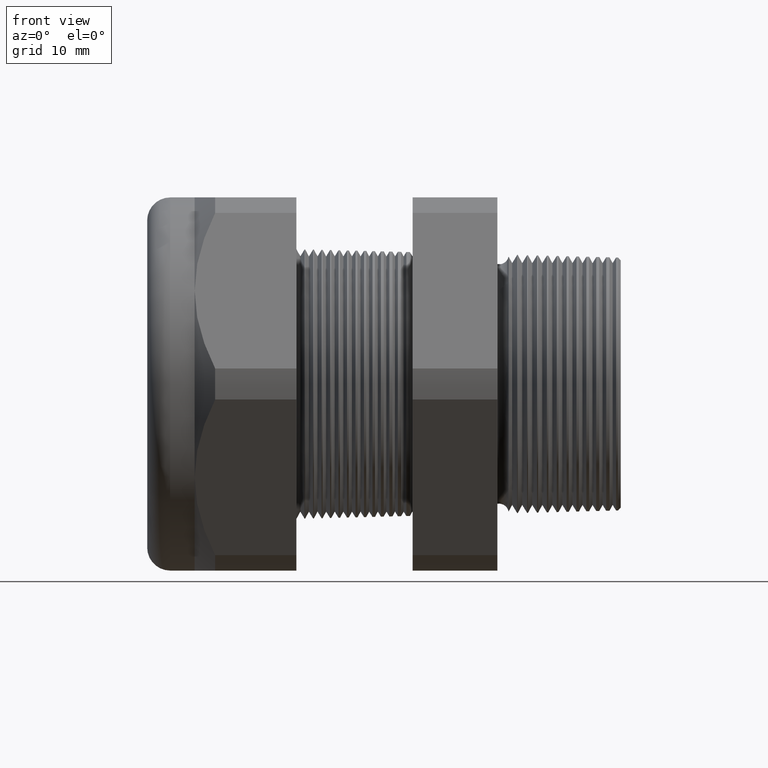
[diagram: clean part render]
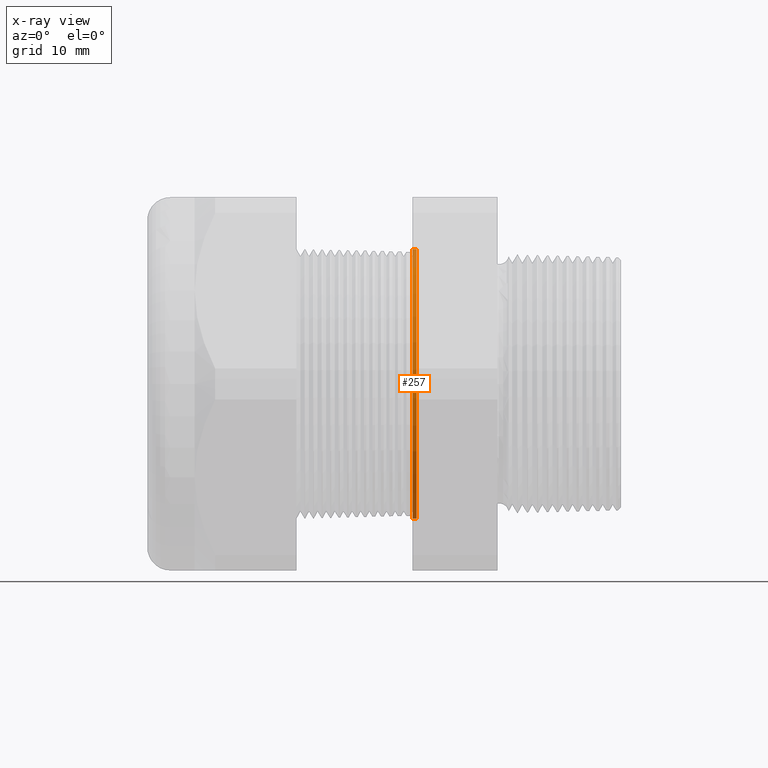
[diagram: x-ray — body ghosted, one internal face saturated and labeled with its STEP entity id]
A machine part, front view, then the same camera in x-ray: the body is ghosted and one INTERNAL B-rep face — a face not visible from any outside direction — is saturated and labeled: STEP entity #257.
In plain terms, the highlighted conical surface has half-angle 1.5 deg.
Its self-contained STEP definition (entity closure, byte-faithful):
#232 = VERTEX_POINT ( 'NONE', #2822 ) ;
#244 = VERTEX_POINT ( 'NONE', #2808 ) ;
#246 = VERTEX_POINT ( 'NONE', #2806 ) ;
#247 = ORIENTED_EDGE ( 'NONE', *, *, #249, .T. ) ;
#248 = VERTEX_POINT ( 'NONE', #2805 ) ;
#249 = EDGE_CURVE ( 'NONE', #248, #246, #2804, .T. ) ;
#250 = ORIENTED_EDGE ( 'NONE', *, *, #5398, .T. ) ;
#251 = EDGE_CURVE ( 'NONE', #244, #248, #2799, .T. ) ;
#252 = EDGE_LOOP ( 'NONE', ( #253, #247, #250, #5396 ) ) ;
#253 = ORIENTED_EDGE ( 'NONE', *, *, #251, .T. ) ;
#257 = ADVANCED_FACE ( 'NONE', ( #2858 ), #2857, .F. ) ;
#1406 = DIRECTION ( 'NONE',  ( -0.9996573249755573700, 0.0000000000000000000, 0.02617694830786618600 ) ) ;
#1407 = VECTOR ( 'NONE', #1406, 39.37007874015748100 ) ;
#1408 = CARTESIAN_POINT ( 'NONE',  ( -0.5914573393463203900, 0.0000000000000000000, 0.4692443365923945100 ) ) ;
#1409 = DIRECTION ( 'NONE',  ( 0.0000000000000000000, 0.0000000000000000000, 1.000000000000000000 ) ) ;
#1410 = DIRECTION ( 'NONE',  ( -1.000000000000000000, 0.0000000000000000000, 0.0000000000000000000 ) ) ;
#1411 = CARTESIAN_POINT ( 'NONE',  ( -0.6052755905511809600, 0.0000000000000000000, 0.0000000000000000000 ) ) ;
#1412 = AXIS2_PLACEMENT_3D ( 'NONE', #1411, #1410, #1409 ) ;
#1413 = CIRCLE ( 'NONE', #1412, 0.4696061802346682700 ) ;
#1414 = LINE ( 'NONE', #1408, #1407 ) ;
#2795 = DIRECTION ( 'NONE',  ( 0.0000000000000000000, 0.0000000000000000000, -1.000000000000000000 ) ) ;
#2796 = DIRECTION ( 'NONE',  ( 1.000000000000000000, 0.0000000000000000000, 0.0000000000000000000 ) ) ;
#2797 = CARTESIAN_POINT ( 'NONE',  ( -0.5914573393463203900, 0.0000000000000000000, 0.0000000000000000000 ) ) ;
#2798 = AXIS2_PLACEMENT_3D ( 'NONE', #2797, #2796, #2795 ) ;
#2799 = CIRCLE ( 'NONE', #2798, 0.4692443365923945100 ) ;
#2801 = DIRECTION ( 'NONE',  ( -0.9996573249755573700, 3.205751595667405400E-018, -0.02617694830786618600 ) ) ;
#2802 = VECTOR ( 'NONE', #2801, 39.37007874015748100 ) ;
#2803 = CARTESIAN_POINT ( 'NONE',  ( -0.5914573393463203900, 5.746585748258992000E-017, -0.4692443365923945100 ) ) ;
#2804 = LINE ( 'NONE', #2803, #2802 ) ;
#2805 = CARTESIAN_POINT ( 'NONE',  ( -0.5914573393463203900, 0.0000000000000000000, -0.4692443365923945100 ) ) ;
#2806 = CARTESIAN_POINT ( 'NONE',  ( -0.6052755905511809600, 5.751017054842014700E-017, -0.4696061802346682100 ) ) ;
#2808 = CARTESIAN_POINT ( 'NONE',  ( -0.5914573393463203900, 5.746585748258992000E-017, 0.4692443365923945100 ) ) ;
#2822 = CARTESIAN_POINT ( 'NONE',  ( -0.6052755905511809600, 0.0000000000000000000, 0.4696061802346682100 ) ) ;
#2853 = DIRECTION ( 'NONE',  ( 0.0000000000000000000, 0.0000000000000000000, 1.000000000000000000 ) ) ;
#2854 = DIRECTION ( 'NONE',  ( -1.000000000000000000, 0.0000000000000000000, 0.0000000000000000000 ) ) ;
#2855 = CARTESIAN_POINT ( 'NONE',  ( -0.5914573393463203900, 0.0000000000000000000, 0.0000000000000000000 ) ) ;
#2856 = AXIS2_PLACEMENT_3D ( 'NONE', #2855, #2854, #2853 ) ;
#2857 = CONICAL_SURFACE ( 'NONE', #2856, 0.4692443365923945100, 0.02617993877990797800 ) ;
#2858 = FACE_OUTER_BOUND ( 'NONE', #252, .T. ) ;
#5396 = ORIENTED_EDGE ( 'NONE', *, *, #5399, .F. ) ;
#5398 = EDGE_CURVE ( 'NONE', #246, #232, #1413, .T. ) ;
#5399 = EDGE_CURVE ( 'NONE', #244, #232, #1414, .T. ) ;